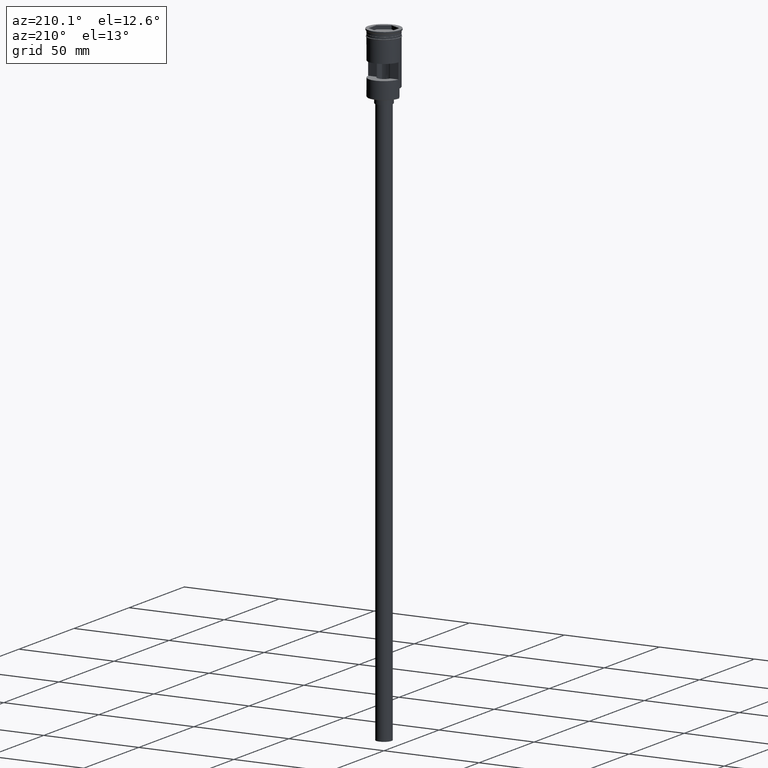
[diagram: clean part render]
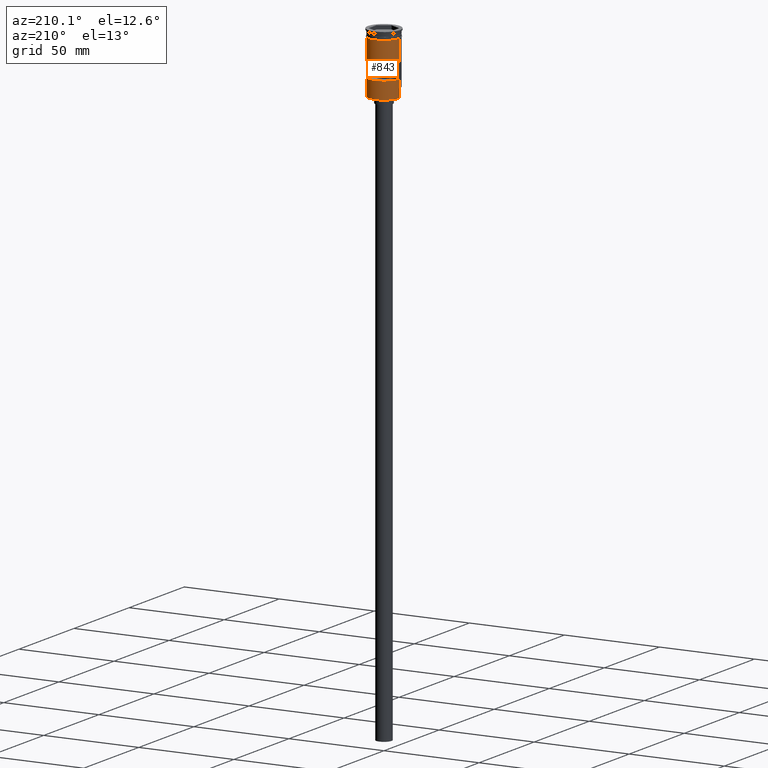
[diagram: same view with one face highlighted and labeled with its STEP entity id]
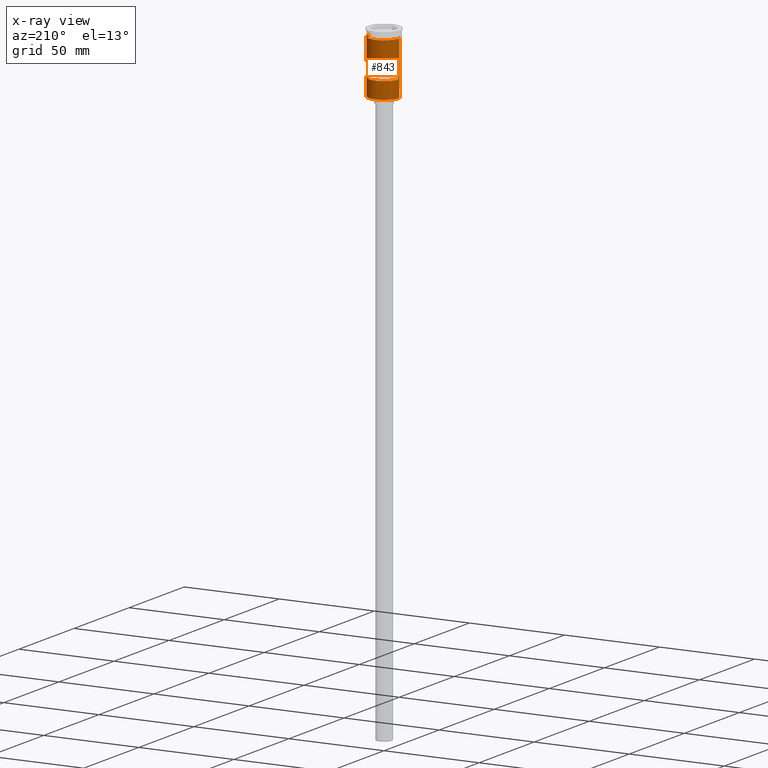
[diagram: x-ray of the same camera — body ghosted, the highlighted face saturated]
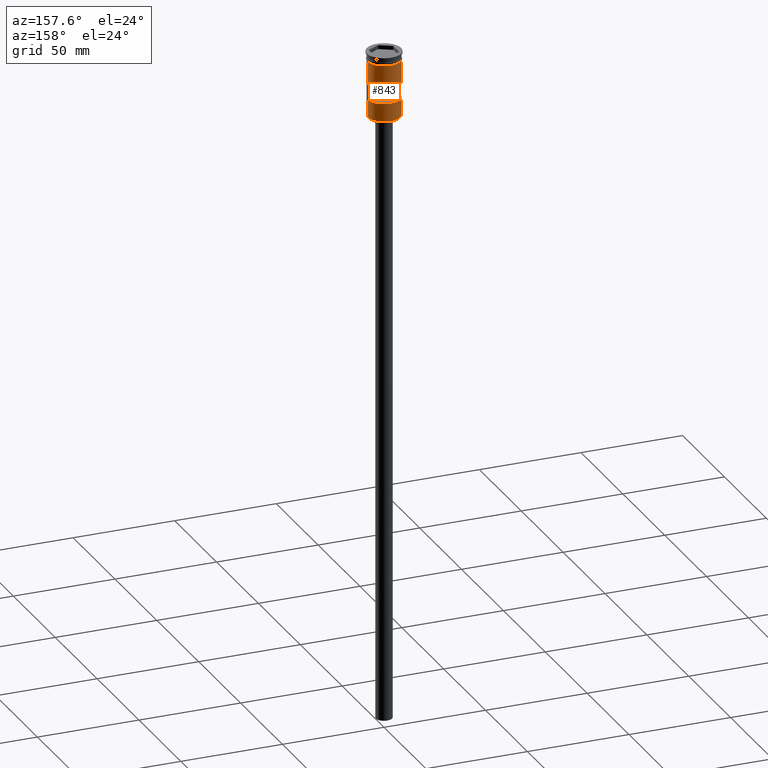
[diagram: same view with one face highlighted and labeled with its STEP entity id]
A machine part, auxiliary view. The second image highlights one B-rep face of the part: STEP entity #843.
The next image is the same camera in x-ray: the body ghosted, the highlighted face saturated — about 0% of this face is hidden behind the body in this view.
A second angle (auxiliary view) of the same face is appended — the face is thin or edge-on in the first view.
In plain terms, the highlighted cylindrical surface (edge-blend (fillet) strip) has radius 8 mm, axis along (-0, -0, 1).
Its self-contained STEP definition (entity closure, byte-faithful):
#15 = DIRECTION ( 'NONE',  ( 0.000000000000000000, 0.000000000000000000, -1.000000000000000000 ) ) ;
#31 = EDGE_CURVE ( 'NONE', #292, #316, #1330, .T. ) ;
#108 = LINE ( 'NONE', #853, #930 ) ;
#118 = DIRECTION ( 'NONE',  ( 0.000000000000000000, 0.000000000000000000, 1.000000000000000000 ) ) ;
#131 = CARTESIAN_POINT ( 'NONE',  ( -7.977468270071648604, 0.6000000000000000888, -15.00000000000000000 ) ) ;
#157 = DIRECTION ( 'NONE',  ( -0.000000000000000000, -0.000000000000000000, 1.000000000000000000 ) ) ;
#163 = CARTESIAN_POINT ( 'NONE',  ( 7.999999999999992895, 9.797174393178817769E-16, -31.80000000000003624 ) ) ;
#193 = ORIENTED_EDGE ( 'NONE', *, *, #31, .T. ) ;
#210 = ORIENTED_EDGE ( 'NONE', *, *, #1379, .T. ) ;
#222 = EDGE_CURVE ( 'NONE', #292, #467, #317, .T. ) ;
#230 = DIRECTION ( 'NONE',  ( -0.000000000000000000, -0.000000000000000000, 1.000000000000000000 ) ) ;
#247 = VERTEX_POINT ( 'NONE', #462 ) ;
#251 = LINE ( 'NONE', #616, #1551 ) ;
#265 = CARTESIAN_POINT ( 'NONE',  ( 0.000000000000000000, 0.000000000000000000, -15.00000000000000000 ) ) ;
#283 = AXIS2_PLACEMENT_3D ( 'NONE', #1382, #989, #493 ) ;
#290 = DIRECTION ( 'NONE',  ( -0.000000000000000000, 2.344220913482172642E-16, -1.000000000000000000 ) ) ;
#292 = VERTEX_POINT ( 'NONE', #163 ) ;
#316 = VERTEX_POINT ( 'NONE', #1142 ) ;
#317 = LINE ( 'NONE', #436, #711 ) ;
#321 = CARTESIAN_POINT ( 'NONE',  ( 7.999999999999996447, 0.000000000000000000, 0.000000000000000000 ) ) ;
#325 = EDGE_CURVE ( 'NONE', #247, #1270, #630, .T. ) ;
#331 = EDGE_LOOP ( 'NONE', ( #1352, #1390, #507, #1452 ) ) ;
#333 = DIRECTION ( 'NONE',  ( -0.000000000000000000, -0.000000000000000000, 1.000000000000000000 ) ) ;
#345 = FACE_OUTER_BOUND ( 'NONE', #1361, .T. ) ;
#423 = CIRCLE ( 'NONE', #632, 7.999999999999996447 ) ;
#433 = DIRECTION ( 'NONE',  ( -0.000000000000000000, -0.000000000000000000, 1.000000000000000000 ) ) ;
#436 = CARTESIAN_POINT ( 'NONE',  ( 7.999999999999992895, 9.797174393178817769E-16, -32.00000000000000000 ) ) ;
#445 = EDGE_CURVE ( 'NONE', #1270, #915, #847, .T. ) ;
#462 = CARTESIAN_POINT ( 'NONE',  ( 7.977468270071646828, 0.6000000000000000888, -23.00000000000000000 ) ) ;
#467 = VERTEX_POINT ( 'NONE', #721 ) ;
#480 = DIRECTION ( 'NONE',  ( 1.000000000000000000, 0.000000000000000000, 0.000000000000000000 ) ) ;
#493 = DIRECTION ( 'NONE',  ( 1.000000000000000000, 0.000000000000000000, 0.000000000000000000 ) ) ;
#507 = ORIENTED_EDGE ( 'NONE', *, *, #445, .F. ) ;
#508 = CARTESIAN_POINT ( 'NONE',  ( -7.977468270071648604, 0.6000000000000000888, 0.000000000000000000 ) ) ;
#576 = AXIS2_PLACEMENT_3D ( 'NONE', #1221, #976, #480 ) ;
#597 = CYLINDRICAL_SURFACE ( 'NONE', #576, 7.999999999999996447 ) ;
#611 = EDGE_CURVE ( 'NONE', #1196, #1187, #108, .T. ) ;
#616 = CARTESIAN_POINT ( 'NONE',  ( 7.977468270071648604, 0.6000000000000000888, 0.000000000000000000 ) ) ;
#624 = EDGE_CURVE ( 'NONE', #915, #629, #423, .T. ) ;
#629 = VERTEX_POINT ( 'NONE', #786 ) ;
#630 = CIRCLE ( 'NONE', #1356, 7.999999999999996447 ) ;
#632 = AXIS2_PLACEMENT_3D ( 'NONE', #265, #290, #758 ) ;
#641 = EDGE_CURVE ( 'NONE', #629, #247, #251, .T. ) ;
#666 = CARTESIAN_POINT ( 'NONE',  ( -7.977468270071648604, 0.6000000000000000888, -23.00000000000000000 ) ) ;
#677 = ORIENTED_EDGE ( 'NONE', *, *, #611, .T. ) ;
#711 = VECTOR ( 'NONE', #333, 1000.000000000000000 ) ;
#721 = CARTESIAN_POINT ( 'NONE',  ( 7.999999999999996447, 9.797174393178821713E-16, -27.30000000000006466 ) ) ;
#728 = CARTESIAN_POINT ( 'NONE',  ( 0.000000000000000000, 0.000000000000000000, -31.80000000000003624 ) ) ;
#734 = DIRECTION ( 'NONE',  ( -0.000000000000000000, -0.000000000000000000, 1.000000000000000000 ) ) ;
#758 = DIRECTION ( 'NONE',  ( 0.000000000000000000, -1.000000000000000000, -2.168404344971009854E-16 ) ) ;
#786 = CARTESIAN_POINT ( 'NONE',  ( 7.977468270071646828, 0.6000000000000000888, -15.00000000000000000 ) ) ;
#843 = ADVANCED_FACE ( 'NONE', ( #1343, #345 ), #597, .T. ) ;
#847 = LINE ( 'NONE', #508, #1282 ) ;
#848 = AXIS2_PLACEMENT_3D ( 'NONE', #728, #118, #1605 ) ;
#853 = CARTESIAN_POINT ( 'NONE',  ( -7.999999999999996447, 9.797174393178821713E-16, 0.000000000000000000 ) ) ;
#887 = CARTESIAN_POINT ( 'NONE',  ( -8.000000000000000000, 9.797174393178825657E-16, -3.999999999999997335 ) ) ;
#915 = VERTEX_POINT ( 'NONE', #131 ) ;
#930 = VECTOR ( 'NONE', #734, 1000.000000000000000 ) ;
#941 = LINE ( 'NONE', #321, #1384 ) ;
#960 = VECTOR ( 'NONE', #433, 1000.000000000000000 ) ;
#976 = DIRECTION ( 'NONE',  ( -0.000000000000000000, -0.000000000000000000, 1.000000000000000000 ) ) ;
#989 = DIRECTION ( 'NONE',  ( -0.000000000000000000, -0.000000000000000000, 1.000000000000000000 ) ) ;
#1042 = DIRECTION ( 'NONE',  ( -1.000000000000000000, 0.000000000000000000, 0.000000000000000000 ) ) ;
#1064 = LINE ( 'NONE', #1558, #960 ) ;
#1077 = ORIENTED_EDGE ( 'NONE', *, *, #222, .F. ) ;
#1142 = CARTESIAN_POINT ( 'NONE',  ( -7.999999999999992895, 0.000000000000000000, -31.80000000000003624 ) ) ;
#1187 = VERTEX_POINT ( 'NONE', #887 ) ;
#1196 = VERTEX_POINT ( 'NONE', #1487 ) ;
#1216 = ORIENTED_EDGE ( 'NONE', *, *, #1392, .F. ) ;
#1219 = ORIENTED_EDGE ( 'NONE', *, *, #1589, .F. ) ;
#1221 = CARTESIAN_POINT ( 'NONE',  ( 0.000000000000000000, 0.000000000000000000, 0.000000000000000000 ) ) ;
#1244 = CARTESIAN_POINT ( 'NONE',  ( 0.000000000000000000, 0.000000000000000000, -23.00000000000000000 ) ) ;
#1257 = VERTEX_POINT ( 'NONE', #1300 ) ;
#1270 = VERTEX_POINT ( 'NONE', #666 ) ;
#1282 = VECTOR ( 'NONE', #230, 1000.000000000000000 ) ;
#1300 = CARTESIAN_POINT ( 'NONE',  ( 8.000000000000000000, 0.000000000000000000, -3.999999999999997335 ) ) ;
#1330 = CIRCLE ( 'NONE', #848, 7.999999999999996447 ) ;
#1343 = FACE_BOUND ( 'NONE', #331, .T. ) ;
#1352 = ORIENTED_EDGE ( 'NONE', *, *, #641, .F. ) ;
#1356 = AXIS2_PLACEMENT_3D ( 'NONE', #1244, #1391, #1042 ) ;
#1361 = EDGE_LOOP ( 'NONE', ( #210, #677, #1219, #1216, #1077, #193 ) ) ;
#1379 = EDGE_CURVE ( 'NONE', #316, #1196, #1064, .T. ) ;
#1382 = CARTESIAN_POINT ( 'NONE',  ( 0.000000000000000000, 0.000000000000000000, -3.999999999999997335 ) ) ;
#1384 = VECTOR ( 'NONE', #157, 1000.000000000000000 ) ;
#1390 = ORIENTED_EDGE ( 'NONE', *, *, #624, .F. ) ;
#1391 = DIRECTION ( 'NONE',  ( 0.000000000000000000, 0.000000000000000000, 1.000000000000000000 ) ) ;
#1392 = EDGE_CURVE ( 'NONE', #467, #1257, #941, .T. ) ;
#1452 = ORIENTED_EDGE ( 'NONE', *, *, #325, .F. ) ;
#1487 = CARTESIAN_POINT ( 'NONE',  ( -7.999999999999992895, 0.000000000000000000, -27.30000000000006466 ) ) ;
#1504 = CIRCLE ( 'NONE', #283, 8.000000000000000000 ) ;
#1551 = VECTOR ( 'NONE', #15, 1000.000000000000000 ) ;
#1558 = CARTESIAN_POINT ( 'NONE',  ( -7.999999999999992895, 0.000000000000000000, -32.00000000000000000 ) ) ;
#1589 = EDGE_CURVE ( 'NONE', #1257, #1187, #1504, .T. ) ;
#1605 = DIRECTION ( 'NONE',  ( -1.000000000000000000, 0.000000000000000000, 0.000000000000000000 ) ) ;